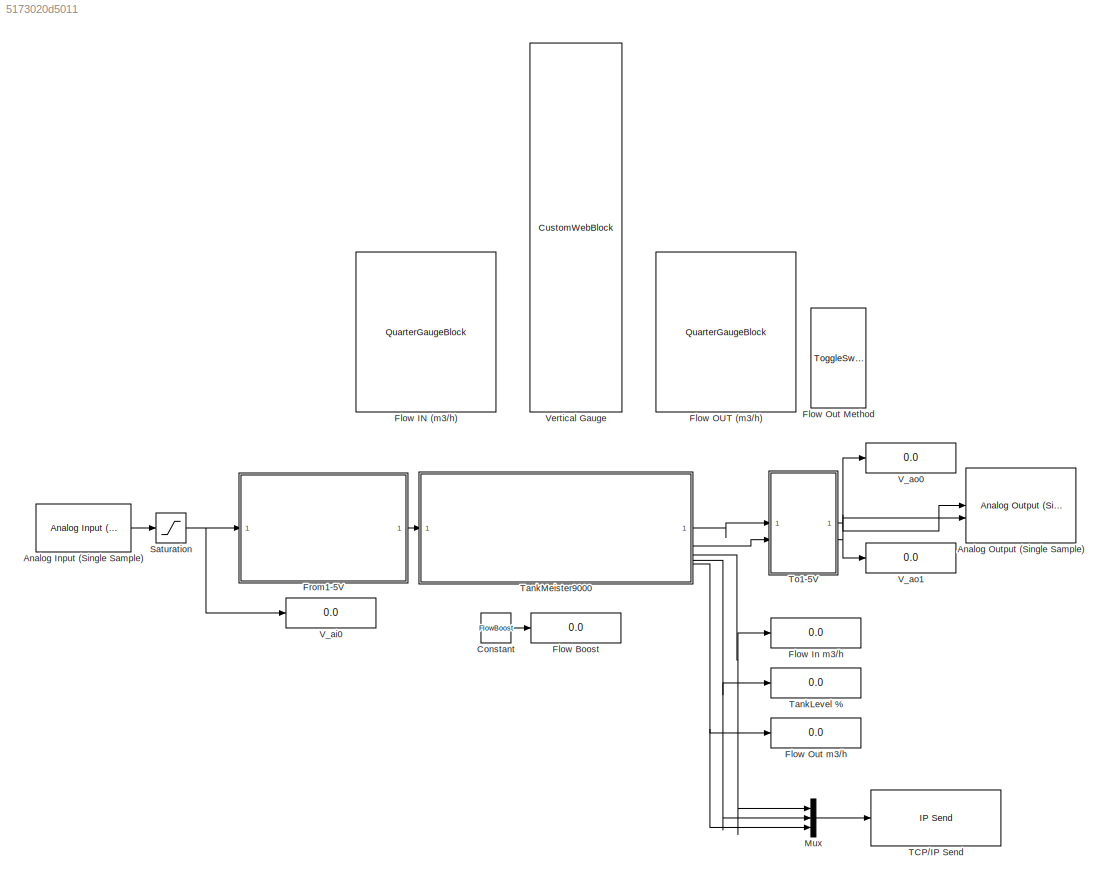
MODEL slx_5173020d5011
KIND model
CONFIG AbsTol = auto
CONFIG EnableMultiTasking = off
CONFIG FixedStep = auto
CONFIG MaxStep = auto
CONFIG MinStep = auto
CONFIG RelTol = 1e-3
CONFIG SampleTimeConstraint = Unconstrained
CONFIG SolverName = ode4
CONFIG StartTime = 0.0
CONFIG StopTime = inf
BLOCK [Reference] Analog Input (Single Sample)  REF=daqlib/Analog Input
(Single Sample)
  SourceBlock = daqlib/Analog Input\n(Single Sample)
  SourceType = Analog Input (Single Sample)
BLOCK [Reference] Analog Output (Single Sample)  REF=daqlib/Analog Output
(Single Sample)
  SourceBlock = daqlib/Analog Output\n(Single Sample)
  SourceType = Analog Output (Single Sample)
BLOCK [Constant] Constant
  Value = FlowBoost
BLOCK [Display] Flow Boost
  Decimation = 1
BLOCK [QuarterGaugeBlock] Flow IN (m3//h)
  ScaleMax = 50
BLOCK [Display] Flow In m3//h
  Decimation = 1
BLOCK [QuarterGaugeBlock] Flow OUT (m3//h)
  ScaleMax = 50
BLOCK [ToggleSwitchBlock] Flow Out Method
BLOCK [Display] Flow Out m3//h
  Decimation = 1
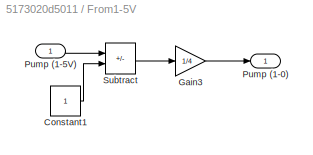
BLOCK [SubSystem] From1-5V
BLOCK [Constant] From1-5V/Constant1
BLOCK [Gain] From1-5V/Gain3
  Gain = 1/4
BLOCK [Outport] From1-5V/Pump (1-0)
BLOCK [Inport] From1-5V/Pump (1-5V)
BLOCK [Sum] From1-5V/Subtract
  IconShape = rectangular
  Inputs = +-
BLOCK [Mux] Mux
  DisplayOption = bar
  Inputs = 3
BLOCK [Saturate] Saturation
  LowerLimit = 1
  UpperLimit = 5
BLOCK [Reference] TCP//IP Send  REF=instrumentlib/TCP//IP Send
  Commented = on
  SourceBlock = instrumentlib/TCP//IP Send
  SourceType = instrument.system.TCPIPSend
BLOCK [Display] TankLevel %
  Decimation = 1
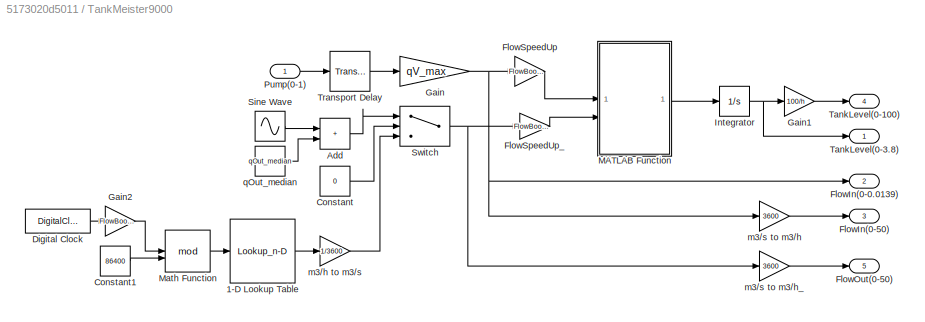
BLOCK [SubSystem] TankMeister9000
BLOCK [Lookup_n-D] TankMeister9000/1-D Lookup Table
  BreakpointsForDimension1 = [0;288;576;864;1152;1440;1728;2016;2304;2592;2880;3168;3456;3744;4032;4320;4608;4896;5184;5472;5760;6048;6336;6624;6912;7200;7488;7776;8064;8352;8640;8928;9216;9504;9792;10080;10368;10656;10944;11232;11520;11808;12096;12384;12672;12960;13248;13536;13824;14112;14400;14688;14976;15264;15552;15840;16128;16416;16704;16992;17280;17568;17856;18144;18432;18720;19008;19296;19584;19872;20160;20448;20736;21...<+1366ch>
  InputPortMap = u0
  InternalRulePriority = Speed
  NumberOfTableDimensions = 1
  RndMeth = Simplest
  Table = [16.2841516;16.5673652;16.308551;17.4394106;19.1363052;18.7597848;17.7330304;16.9856068;16.6888823;17.3544765;17.8218263;18.1274955;18.2209805;18.64702;18.6778833;18.5444921;18.1540753;17.62776;18.326131;18.2694705;17.902114;17.244003;16.6657269;17.819349;19.1239116;19.4737452;18.6103761;18.3200866;18.6669026;18.7781972;18.1294632;18.3681507;19.5541061;19.4851681;19.5704582;20.2541194;20.5368896;2...<+2875ch>
BLOCK [Sum] TankMeister9000/Add
  IconShape = rectangular
BLOCK [Constant] TankMeister9000/Constant
  Value = 0
BLOCK [Constant] TankMeister9000/Constant1
  Value = 86400
BLOCK [DigitalClock] TankMeister9000/Digital Clock
BLOCK [Outport] TankMeister9000/FlowIn(0-0.0139)
  Port = 2
BLOCK [Outport] TankMeister9000/FlowIn(0-50)
  Port = 3
BLOCK [Outport] TankMeister9000/FlowOut(0-50)
  Port = 5
BLOCK [Gain] TankMeister9000/FlowSpeedUp
  Gain = FlowBoost
BLOCK [Gain] TankMeister9000/FlowSpeedUp_
  Gain = FlowBoost
BLOCK [Gain] TankMeister9000/Gain
  Gain = qV_max
BLOCK [Gain] TankMeister9000/Gain1
  Gain = 100/h
BLOCK [Gain] TankMeister9000/Gain2
  Gain = FlowBoost
BLOCK [Integrator] TankMeister9000/Integrator
  InitialCondition = InitialLevel
  LimitOutput = on
  LowerSaturationLimit = 0
  UpperSaturationLimit = 10
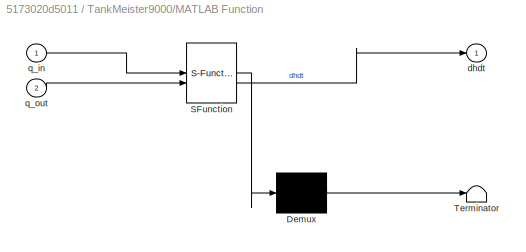
BLOCK [SubSystem] TankMeister9000/MATLAB Function
  ErrorFcn = Stateflow.Translate.translate
  PermitHierarchicalResolution = ExplicitOnly
  SFBlockType = MATLAB Function
  TreatAsAtomicUnit = on
BLOCK [Demux] TankMeister9000/MATLAB Function/ Demux 
  Outputs = 1
BLOCK [S-Function] TankMeister9000/MATLAB Function/ SFunction 
  EnableBusSupport = on
  FunctionName = sf_sfun
  Parameters = A
  PortCounts = [2 2]
  SFcnIsStateOwnerBlock = off
  SFunctionDeploymentMode = off
  Tag = Stateflow S-Function 2
BLOCK [Terminator] TankMeister9000/MATLAB Function/ Terminator 
BLOCK [Outport] TankMeister9000/MATLAB Function/dhdt
BLOCK [Inport] TankMeister9000/MATLAB Function/q_in
BLOCK [Inport] TankMeister9000/MATLAB Function/q_out
  Port = 2
BLOCK [Math] TankMeister9000/Math Function
  Operator = mod
BLOCK [Inport] TankMeister9000/Pump(0-1)
BLOCK [Sin] TankMeister9000/Sine Wave
  Amplitude = qOut_simAmplitude
  Frequency = 0.1
  SampleTime = 0
BLOCK [Switch] TankMeister9000/Switch
  Criteria = u2 > Threshold
  InputSameDT = off
  SaturateOnIntegerOverflow = off
BLOCK [Outport] TankMeister9000/TankLevel(0-100)
  Port = 4
BLOCK [Outport] TankMeister9000/TankLevel(0-3.8)
BLOCK [TransportDelay] TankMeister9000/Transport Delay
  DelayTime = 3
BLOCK [Gain] TankMeister9000/m3//h to m3//s
  Gain = 1/3600
BLOCK [Gain] TankMeister9000/m3//s to m3//h
  Gain = 3600
BLOCK [Gain] TankMeister9000/m3//s to m3//h_
  Gain = 3600
BLOCK [Constant] TankMeister9000/qOut_median
  Value = qOut_median
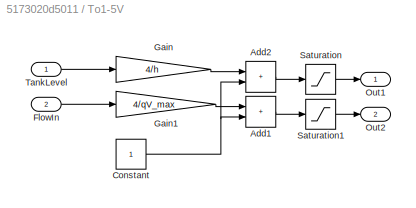
BLOCK [SubSystem] To1-5V
BLOCK [Sum] To1-5V/Add1
  IconShape = rectangular
BLOCK [Sum] To1-5V/Add2
  IconShape = rectangular
BLOCK [Constant] To1-5V/Constant
BLOCK [Inport] To1-5V/FlowIn
  Port = 2
BLOCK [Gain] To1-5V/Gain
  Gain = 4/h
BLOCK [Gain] To1-5V/Gain1
  Gain = 4/qV_max
BLOCK [Outport] To1-5V/Out1
BLOCK [Outport] To1-5V/Out2
  Port = 2
BLOCK [Saturate] To1-5V/Saturation
  LowerLimit = 1
  UpperLimit = 5
BLOCK [Saturate] To1-5V/Saturation1
  LowerLimit = 1
  UpperLimit = 5
BLOCK [Inport] To1-5V/TankLevel
BLOCK [Display] V_ai0
  Decimation = 1
BLOCK [Display] V_ao0
  Decimation = 1
BLOCK [Display] V_ao1
  Decimation = 1
BLOCK [CustomWebBlock] Vertical Gauge
  Configuration = {"components":[{"name":"LinearScaleComponent","settings":{"bounds":{"max":3.8,"min":0,"tickInterval":"auto"},"internalTickHeightScaleFactor":0.5,"labelColor":[255,255,200],"labelFont":{"font":"Arial","fontSize":12},"labelOffset":0.05,"labelTransparency":1,"needleImage":{"size":[21,75],"src":"data:image\/svg+xml;base64,PHN2ZyB4bWxucz0iaHR0cDovL3d3dy53My5vcmcvMjAwMC9zdmciIHhtbG5zOnhsaW5rPSJodHRwOi8v...<+4597ch>
  LabelPosition = Hide
  ShowInitialText = on
LINE Analog Input (Single Sample):1 -> Saturation:1
LINE Constant:1 -> Flow Boost:1
LINE From1-5V/Constant1:1 -> From1-5V/Subtract:2
LINE From1-5V/Gain3:1 -> From1-5V/Pump (1-0):1
LINE From1-5V/Pump (1-5V):1 -> From1-5V/Subtract:1
LINE From1-5V/Subtract:1 -> From1-5V/Gain3:1
LINE From1-5V:1 -> TankMeister9000:1
LINE Mux:1 -> TCP//IP Send:1
NET Saturation:1 -> From1-5V:1, V_ai0:1
LINE TankMeister9000/1-D Lookup Table:1 -> TankMeister9000/m3//h to m3//s:1
LINE TankMeister9000/Add:1 -> TankMeister9000/Switch:1
LINE TankMeister9000/Constant1:1 -> TankMeister9000/Math Function:2
LINE TankMeister9000/Constant:1 -> TankMeister9000/Switch:2
LINE TankMeister9000/Digital Clock:1 -> TankMeister9000/Gain2:1
LINE TankMeister9000/FlowSpeedUp:1 -> TankMeister9000/MATLAB Function:1
LINE TankMeister9000/FlowSpeedUp_:1 -> TankMeister9000/MATLAB Function:2
LINE TankMeister9000/Gain1:1 -> TankMeister9000/TankLevel(0-100):1
LINE TankMeister9000/Gain2:1 -> TankMeister9000/Math Function:1
NET TankMeister9000/Gain:1 -> TankMeister9000/FlowIn(0-0.0139):1, TankMeister9000/FlowSpeedUp:1, TankMeister9000/m3//s to m3//h:1
NET TankMeister9000/Integrator:1 -> TankMeister9000/Gain1:1, TankMeister9000/TankLevel(0-3.8):1
LINE TankMeister9000/MATLAB Function:1 -> TankMeister9000/Integrator:1
LINE TankMeister9000/Math Function:1 -> TankMeister9000/1-D Lookup Table:1
LINE TankMeister9000/Pump(0-1):1 -> TankMeister9000/Transport Delay:1
LINE TankMeister9000/Sine Wave:1 -> TankMeister9000/Add:1
NET TankMeister9000/Switch:1 -> TankMeister9000/FlowSpeedUp_:1, TankMeister9000/m3//s to m3//h_:1
LINE TankMeister9000/Transport Delay:1 -> TankMeister9000/Gain:1
LINE TankMeister9000/m3//h to m3//s:1 -> TankMeister9000/Switch:3
LINE TankMeister9000/m3//s to m3//h:1 -> TankMeister9000/FlowIn(0-50):1
LINE TankMeister9000/m3//s to m3//h_:1 -> TankMeister9000/FlowOut(0-50):1
LINE TankMeister9000/qOut_median:1 -> TankMeister9000/Add:2
LINE TankMeister9000:1 -> To1-5V:1
LINE TankMeister9000:2 -> To1-5V:2
NET TankMeister9000:3 -> Flow In m3//h:1, Mux:1
NET TankMeister9000:4 -> Mux:2, TankLevel %:1
NET TankMeister9000:5 -> Flow Out m3//h:1, Mux:3
LINE To1-5V/Add1:1 -> To1-5V/Saturation1:1
LINE To1-5V/Add2:1 -> To1-5V/Saturation:1
NET To1-5V/Constant:1 -> To1-5V/Add1:2, To1-5V/Add2:2
LINE To1-5V/FlowIn:1 -> To1-5V/Gain1:1
LINE To1-5V/Gain1:1 -> To1-5V/Add1:1
LINE To1-5V/Gain:1 -> To1-5V/Add2:1
LINE To1-5V/Saturation1:1 -> To1-5V/Out2:1
LINE To1-5V/Saturation:1 -> To1-5V/Out1:1
LINE To1-5V/TankLevel:1 -> To1-5V/Gain:1
NET To1-5V:1 -> Analog Output (Single Sample):1, V_ao0:1
NET To1-5V:2 -> Analog Output (Single Sample):2, V_ao1:1
note: NET lines group one-source signal fan-out (src -> all destinations, sorted); 1:1 wires keep LINE
CHART TankMeister9000/MATLAB Function states=1 transitions=1
  STATE_LABEL 'eML_blk_kernel()'
  STATE_LABEL 'SCRIPT:\nfunction dhdt = TankLevel(q_in,q_out, A)\n\ndhdt = (1/A)*(q_in-q_out);\n'
CHART  states=0 transitions=0
